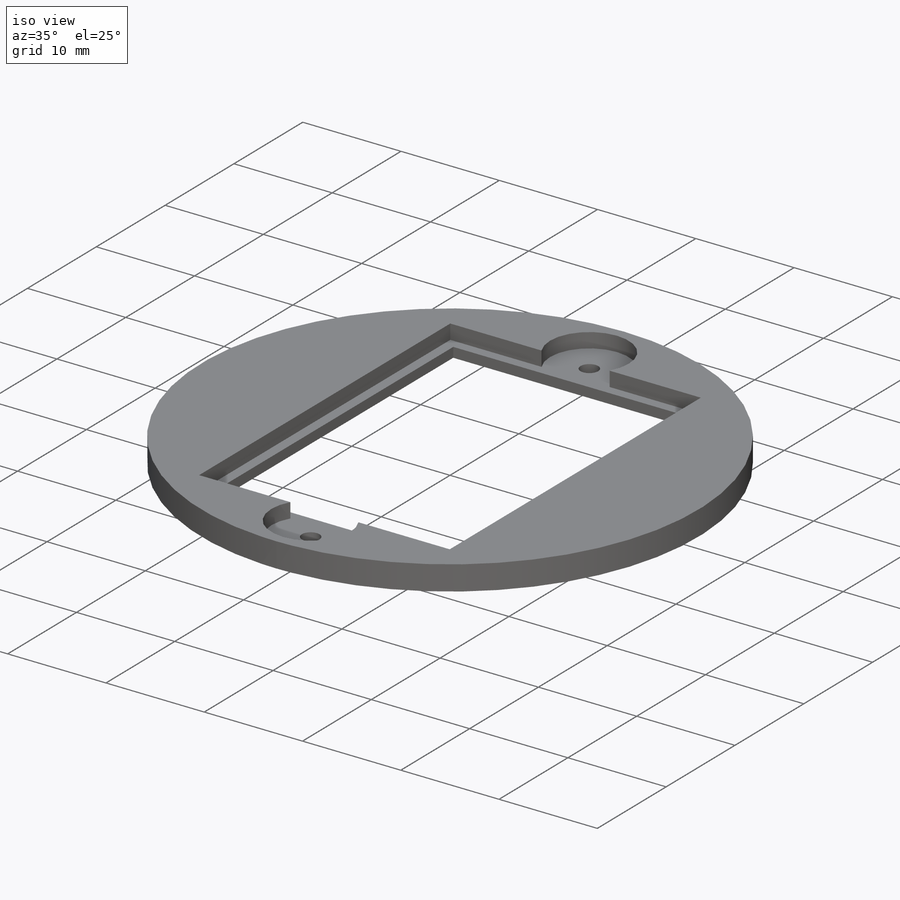
[diagram: iso view]
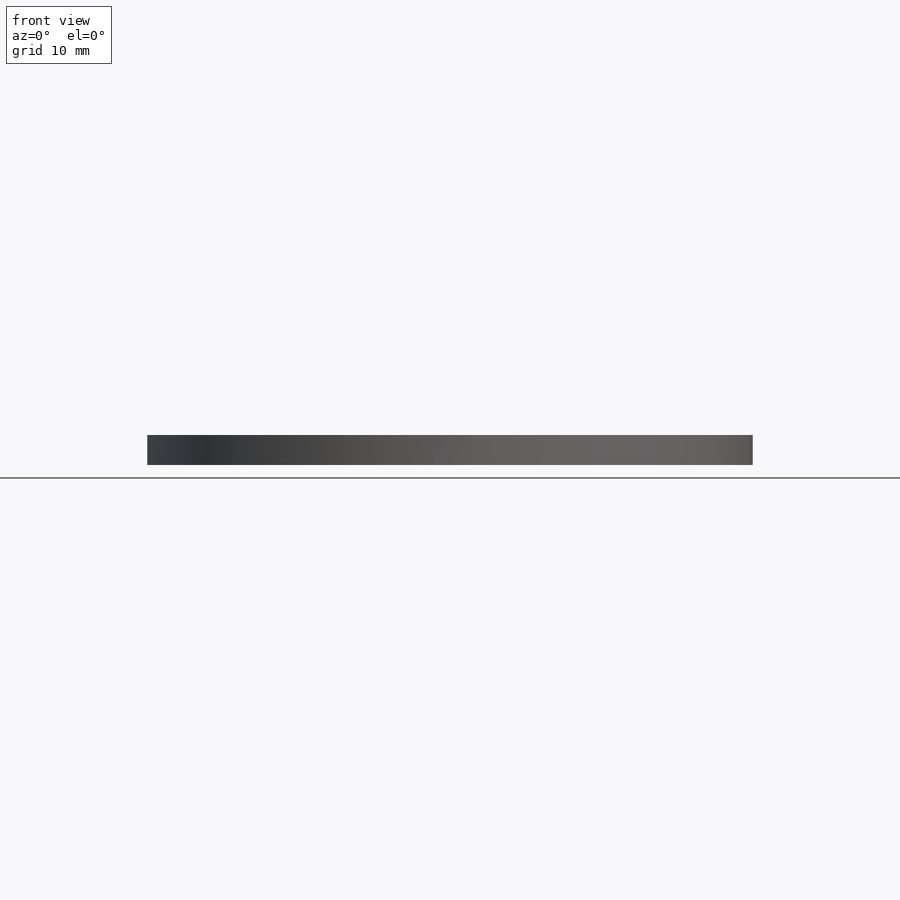
[diagram: front view]
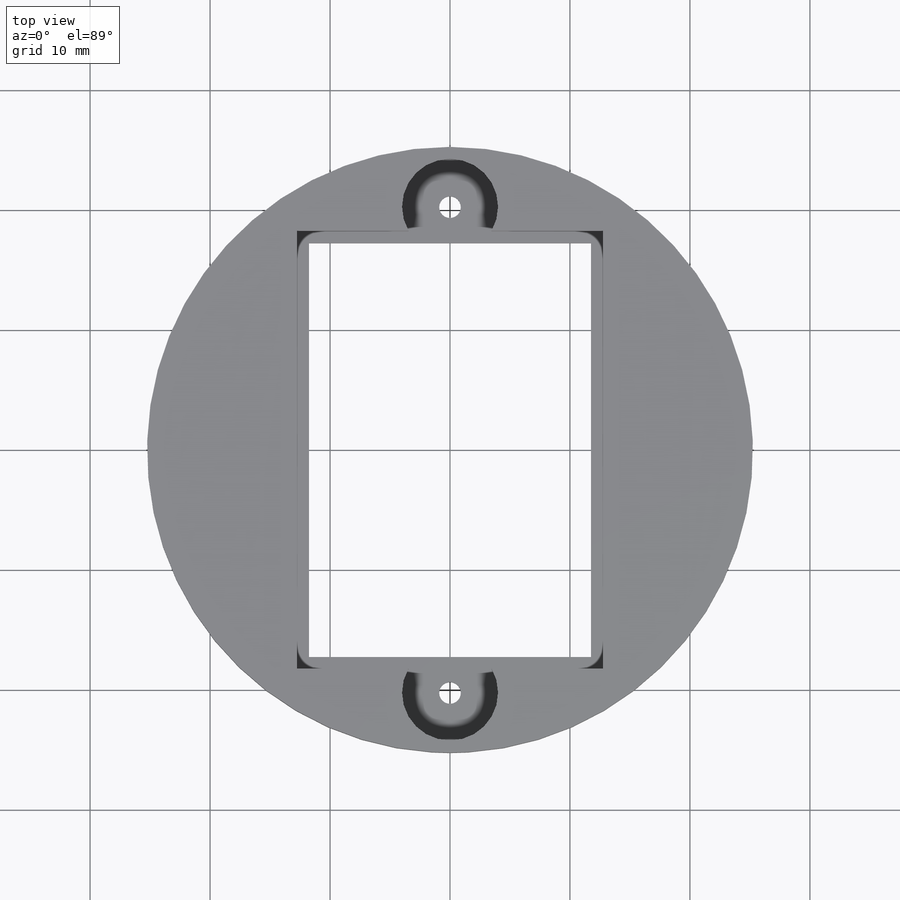
[diagram: top view]
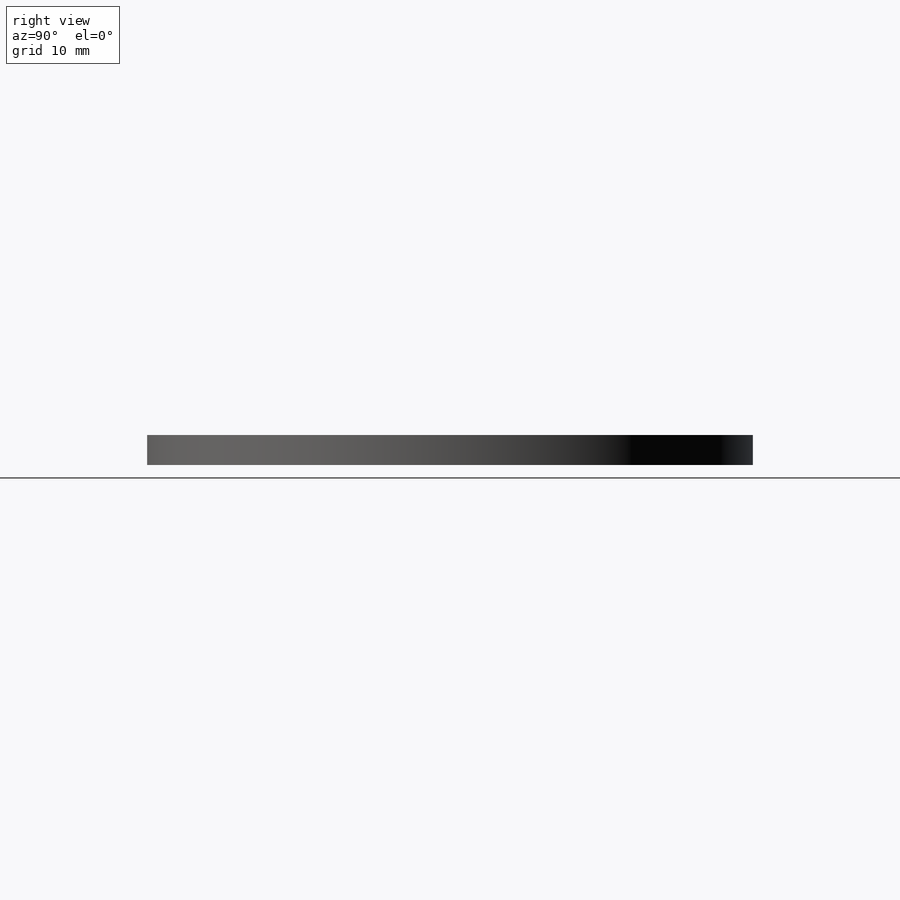
[diagram: right view]
SOLIDWORKS PART (.sldprt)
format: sldprt  version: not decoded by parser v0  size: 206,848 bytes
history: native  units: mm
features: sketch x5, cut_extrude x4, material x1, extrude x1 (+12 scaffold rows collapsed)
feature tree (23):
  scaffold x12  (default folders/planes/origin — collapsed)
  material  "Material <not specified>"
  sketch  "Sketch1"  dims[D1=25.0mm]
  extrude  "Boss-Extrude1"  Depth=2.5mm
  sketch  "Sketch2"  dims[D1=25.5mm D2=36.5mm]
  cut_extrude  "Cut-Extrude1"  Depth=1.5mm
  sketch  "Sketch3"  dims[D1=23.5mm D2=34.5mm]
  cut_extrude  "Cut-Extrude2"  Depth=1.2mm
  sketch  "Sketch4"  dims[c1.D1=~1.318492mm c1.D2=8.0mm c1.D3=8.0mm c2.D1=20.5mm c2.D3=20.5mm c3.D1=3.0mm c3.D4=3.0mm]
  cut_extrude  "Cut-Extrude3"  Depth=1.5mm
  sketch  "Sketch5"  dims[D1=~0.783224mm]
  cut_extrude  "Cut-Extrude4"  [1 undecoded]
decode coverage: 9 of 10 modeling features carry decoded parameters
note: ~ marks probable driven/reference dimensions
note: 1 parameter value undecoded
note: suppression state not decoded; provenance and decode notes live in map.json
